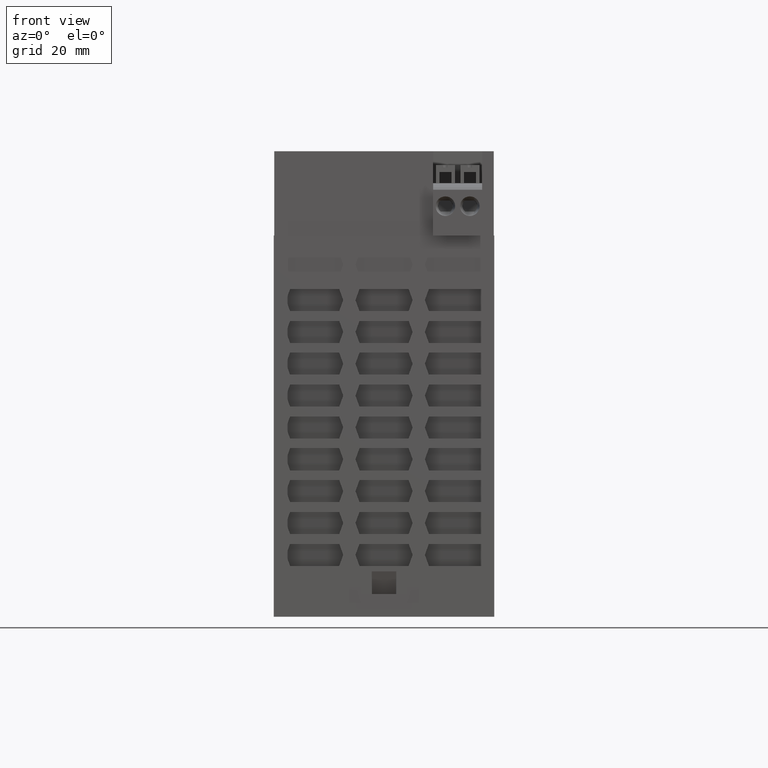
[diagram: clean part render]
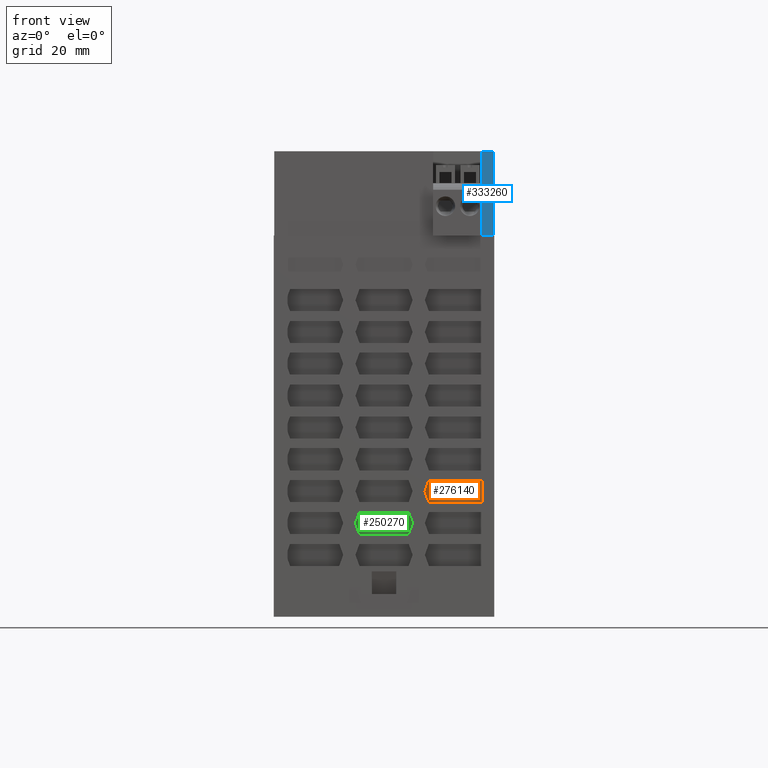
[diagram: same view with three faces highlighted in distinct colors, each labeled with its STEP entity id]
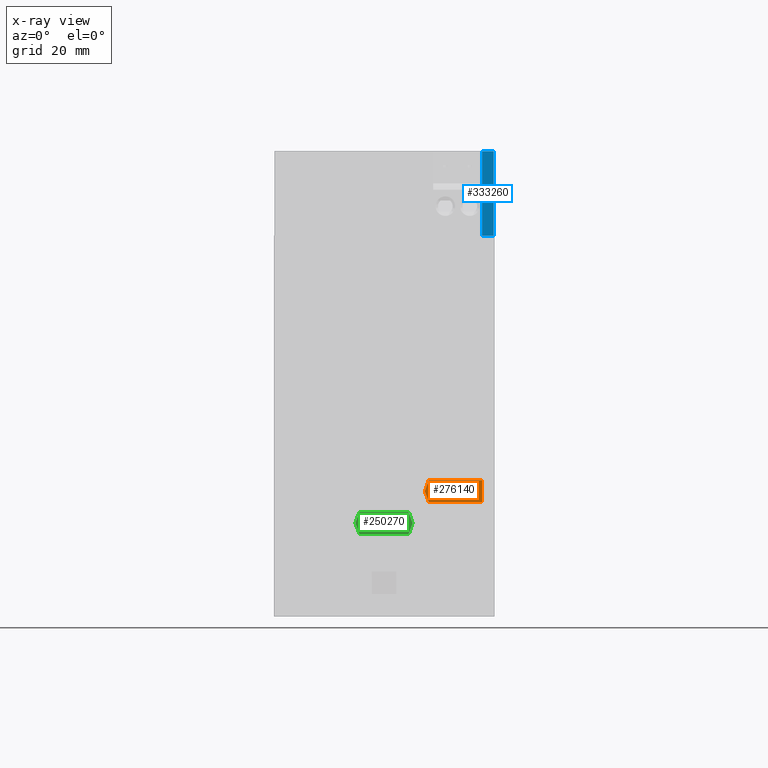
[diagram: x-ray of the same camera — body ghosted, the three highlighted faces saturated]
A machine part, front view with three faces highlighted in distinct colors.
The next image is the same camera in x-ray (body ghosted, the three faces saturated) — at least one of them is partly hidden behind the body in this view.
Their STEP definitions:

[orange] entity #276140 — the highlighted planar face has unit normal (0, -1, 0).
#275670=CARTESIAN_POINT('',(-14.5,32.9,-46.5));
#275680=DIRECTION('',(0.,0.,-1.));
#275690=DIRECTION('',(1.,0.,0.));
#275700=AXIS2_PLACEMENT_3D('',#275670,#275680,#275690);
#275710=PLANE('',#275700);
#275720=CARTESIAN_POINT('',(-13.5,21.85,-46.5));
#275730=DIRECTION('',(0.,-1.,0.));
#275740=VECTOR('',#275730,1.);
#275750=LINE('',#275720,#275740);
#275760=CARTESIAN_POINT('',(-13.5,21.85,-46.5));
#275770=VERTEX_POINT('',#275760);
#275780=CARTESIAN_POINT('',(-13.5,17.35,-46.5));
#275790=VERTEX_POINT('',#275780);
#275800=EDGE_CURVE('',#275770,#275790,#275750,.T.);
#275810=ORIENTED_EDGE('',*,*,#275800,.F.);
#275820=CARTESIAN_POINT('',(-13.5,17.35,-46.5));
#275830=DIRECTION('',(1.,0.,0.));
#275840=VECTOR('',#275830,1.);
#275850=LINE('',#275820,#275840);
#275860=CARTESIAN_POINT('',(-2.652266360432,17.35,-46.5));
#275870=VERTEX_POINT('',#275860);
#275880=EDGE_CURVE('',#275790,#275870,#275850,.T.);
#275890=ORIENTED_EDGE('',*,*,#275880,.F.);
#275900=CARTESIAN_POINT('',(-2.652266360432,17.35,-46.5));
#275910=DIRECTION('',(0.342020143325699,0.939692620785897,0.));
#275920=VECTOR('',#275910,1.);
#275930=LINE('',#275900,#275920);
#275940=CARTESIAN_POINT('',(-1.833333333333,19.6,-46.5));
#275950=VERTEX_POINT('',#275940);
#275960=EDGE_CURVE('',#275870,#275950,#275930,.T.);
#275970=ORIENTED_EDGE('',*,*,#275960,.F.);
#275980=CARTESIAN_POINT('',(-1.833333333333,19.6,-46.5));
#275990=DIRECTION('',(-0.342020143325699,0.939692620785897,0.));
#276000=VECTOR('',#275990,1.);
#276010=LINE('',#275980,#276000);
#276020=CARTESIAN_POINT('',(-2.65226636043204,21.85,-46.5));
#276030=VERTEX_POINT('',#276020);
#276040=EDGE_CURVE('',#275950,#276030,#276010,.T.);
#276050=ORIENTED_EDGE('',*,*,#276040,.F.);
#276060=CARTESIAN_POINT('',(-2.652266360432,21.85,-46.5));
#276070=DIRECTION('',(-1.,0.,0.));
#276080=VECTOR('',#276070,1.);
#276090=LINE('',#276060,#276080);
#276100=EDGE_CURVE('',#276030,#275770,#276090,.T.);
#276110=ORIENTED_EDGE('',*,*,#276100,.F.);
#276120=EDGE_LOOP('',(#276110,#276050,#275970,#275890,#275810));
#276130=FACE_OUTER_BOUND('',#276120,.T.);
#276140=ADVANCED_FACE('',(#276130),#275710,.T.);

[blue] entity #333260 — the highlighted planar face has unit normal (0, -1, 0).
#680=CARTESIAN_POINT('',(-15.9,89.,-49.4));
#690=VERTEX_POINT('',#680);
#720=CARTESIAN_POINT('',(0.,89.,-49.4));
#730=DIRECTION('',(1.,0.,2.77555756156289E-17));
#740=VECTOR('',#730,1.);
#750=LINE('',#720,#740);
#760=CARTESIAN_POINT('',(-13.5251222844958,89.,-49.4));
#770=VERTEX_POINT('',#760);
#780=EDGE_CURVE('',#690,#770,#750,.T.);
#140830=CARTESIAN_POINT('',(-13.525122284496,71.8,-49.4));
#140840=VERTEX_POINT('',#140830);
#140870=CARTESIAN_POINT('',(0.,71.8,-49.4));
#140880=DIRECTION('',(-1.,-6.16297582203915E-33,-2.77555756156289E-17));
#140890=VECTOR('',#140880,1.);
#140900=LINE('',#140870,#140890);
#140910=CARTESIAN_POINT('',(-15.9,71.8,-49.4));
#140920=VERTEX_POINT('',#140910);
#140930=EDGE_CURVE('',#140840,#140920,#140900,.T.);
#187200=CARTESIAN_POINT('',(-13.5251222844959,82.4500000000406,-49.4));
#187210=VERTEX_POINT('',#187200);
#189300=CARTESIAN_POINT('',(-15.9,71.8,-49.4));
#189310=DIRECTION('',(0.,-1.,2.22044604925031E-16));
#189320=VECTOR('',#189310,1.);
#189330=LINE('',#189300,#189320);
#189340=EDGE_CURVE('',#690,#140920,#189330,.T.);
#204380=CARTESIAN_POINT('',(-13.525122284496,71.8,-49.4));
#204390=DIRECTION('',(1.57751373625619E-14,1.,-2.22044604925031E-16));
#204400=VECTOR('',#204390,1.);
#204410=LINE('',#204380,#204400);
#204420=EDGE_CURVE('',#140840,#187210,#204410,.T.);
#332980=CARTESIAN_POINT('',(-13.525122284496,71.8,-49.4));
#332990=DIRECTION('',(1.57751373625619E-14,1.,-2.22044604925031E-16));
#333000=VECTOR('',#332990,1.);
#333010=LINE('',#332980,#333000);
#333020=EDGE_CURVE('',#187210,#770,#333010,.T.);
#333140=CARTESIAN_POINT('',(12.687438999987,80.4,-49.4));
#333150=DIRECTION('',(2.77555756156289E-17,-2.22044604925031E-16,-1.));
#333160=DIRECTION('',(-1.,1.84889274661175E-32,-2.77555756156289E-17));
#333170=AXIS2_PLACEMENT_3D('',#333140,#333150,#333160);
#333180=PLANE('',#333170);
#333190=ORIENTED_EDGE('',*,*,#780,.T.);
#333200=ORIENTED_EDGE('',*,*,#189340,.F.);
#333210=ORIENTED_EDGE('',*,*,#140930,.T.);
#333220=ORIENTED_EDGE('',*,*,#204420,.F.);
#333230=ORIENTED_EDGE('',*,*,#333020,.F.);
#333240=EDGE_LOOP('',(#333230,#333220,#333210,#333200,#333190));
#333250=FACE_OUTER_BOUND('',#333240,.T.);
#333260=ADVANCED_FACE('',(#333250),#333180,.T.);

[green] entity #250270 — the highlighted planar face has unit normal (0, -1, 0).
#249720=CARTESIAN_POINT('',(-14.5,32.9,-46.5));
#249730=DIRECTION('',(0.,0.,-1.));
#249740=DIRECTION('',(1.,0.,0.));
#249750=AXIS2_PLACEMENT_3D('',#249720,#249730,#249740);
#249760=PLANE('',#249750);
#249770=CARTESIAN_POINT('',(0.666666666667,13.1,-46.5));
#249780=DIRECTION('',(0.342020143325699,-0.939692620785897,0.));
#249790=VECTOR('',#249780,1.);
#249800=LINE('',#249770,#249790);
#249810=CARTESIAN_POINT('',(0.666666666666968,13.1,-46.5));
#249820=VERTEX_POINT('',#249810);
#249830=CARTESIAN_POINT('',(1.48559969376603,10.85,-46.5));
#249840=VERTEX_POINT('',#249830);
#249850=EDGE_CURVE('',#249820,#249840,#249800,.T.);
#249860=ORIENTED_EDGE('',*,*,#249850,.F.);
#249870=CARTESIAN_POINT('',(1.485599693766,10.85,-46.5));
#249880=DIRECTION('',(1.,0.,0.));
#249890=VECTOR('',#249880,1.);
#249900=LINE('',#249870,#249890);
#249910=CARTESIAN_POINT('',(11.514400306234,10.85,-46.5));
#249920=VERTEX_POINT('',#249910);
#249930=EDGE_CURVE('',#249840,#249920,#249900,.T.);
#249940=ORIENTED_EDGE('',*,*,#249930,.F.);
#249950=CARTESIAN_POINT('',(11.514400306234,10.85,-46.5));
#249960=DIRECTION('',(0.342020143325699,0.939692620785897,0.));
#249970=VECTOR('',#249960,1.);
#249980=LINE('',#249950,#249970);
#249990=CARTESIAN_POINT('',(12.333333333333,13.0999999999999,-46.5));
#250000=VERTEX_POINT('',#249990);
#250010=EDGE_CURVE('',#249920,#250000,#249980,.T.);
#250020=ORIENTED_EDGE('',*,*,#250010,.F.);
#250030=CARTESIAN_POINT('',(12.333333333333,13.1,-46.5));
#250040=DIRECTION('',(-0.342020143325699,0.939692620785897,0.));
#250050=VECTOR('',#250040,1.);
#250060=LINE('',#250030,#250050);
#250070=CARTESIAN_POINT('',(11.514400306234,15.35,-46.5));
#250080=VERTEX_POINT('',#250070);
#250090=EDGE_CURVE('',#250000,#250080,#250060,.T.);
#250100=ORIENTED_EDGE('',*,*,#250090,.F.);
#250110=CARTESIAN_POINT('',(11.514400306234,15.35,-46.5));
#250120=DIRECTION('',(-1.,0.,0.));
#250130=VECTOR('',#250120,1.);
#250140=LINE('',#250110,#250130);
#250150=CARTESIAN_POINT('',(1.485599693766,15.35,-46.5));
#250160=VERTEX_POINT('',#250150);
#250170=EDGE_CURVE('',#250080,#250160,#250140,.T.);
#250180=ORIENTED_EDGE('',*,*,#250170,.F.);
#250190=CARTESIAN_POINT('',(1.485599693766,15.35,-46.5));
#250200=DIRECTION('',(-0.342020143325699,-0.939692620785897,0.));
#250210=VECTOR('',#250200,1.);
#250220=LINE('',#250190,#250210);
#250230=EDGE_CURVE('',#250160,#249820,#250220,.T.);
#250240=ORIENTED_EDGE('',*,*,#250230,.F.);
#250250=EDGE_LOOP('',(#250240,#250180,#250100,#250020,#249940,#249860));
#250260=FACE_OUTER_BOUND('',#250250,.T.);
#250270=ADVANCED_FACE('',(#250260),#249760,.T.);